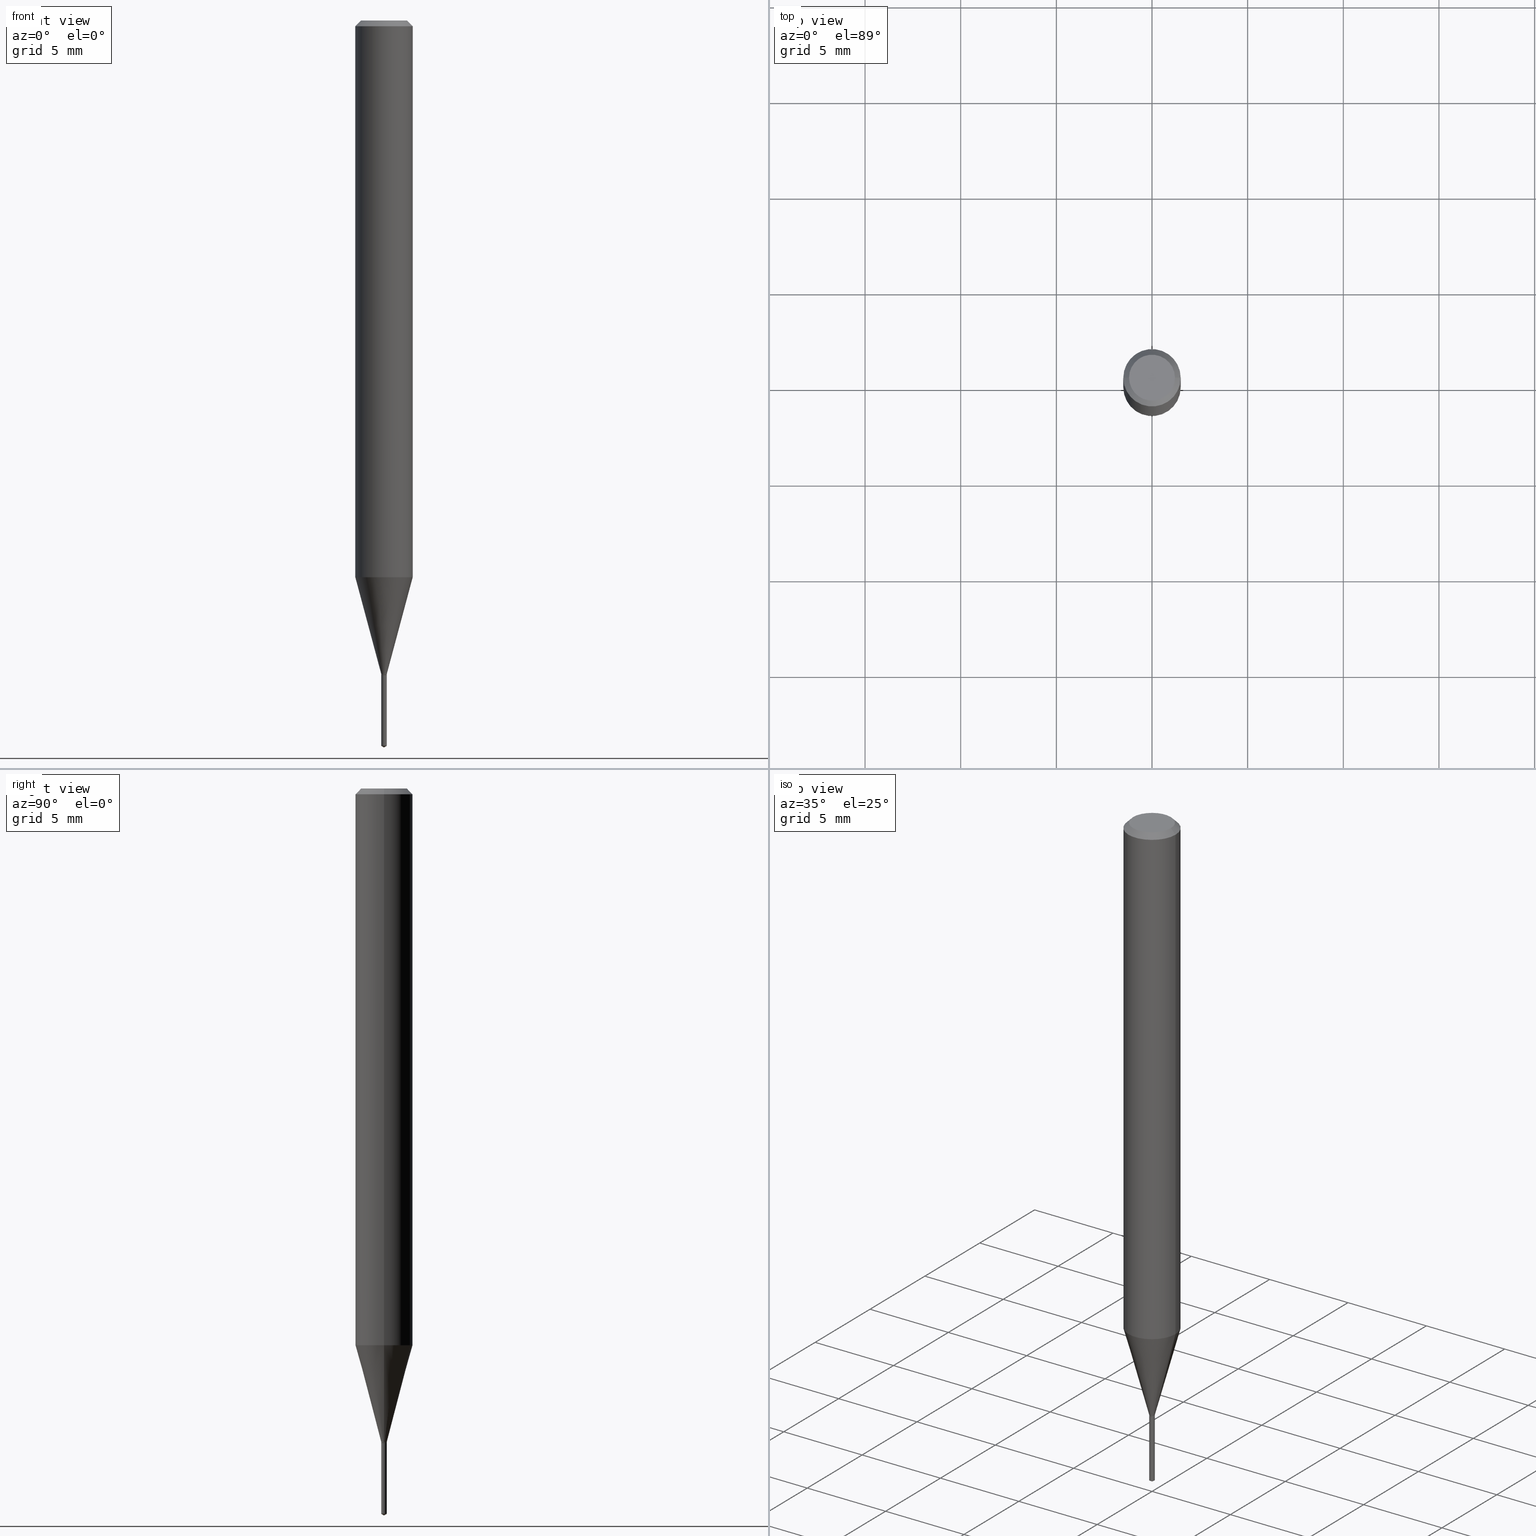
[diagram: canonical four-view strip — front | top / right | iso, engineering-drawing reading convention]
A machine part, canonical four-view strip (front | top / right | iso — engineering-drawing reading convention). The complete STEP part file that produces these views, byte-faithful:
ISO-10303-21;
HEADER;
FILE_DESCRIPTION (( 'STEP AP203' ),
    '1' );
FILE_NAME ('07404.STEP',
    '2024-04-23T21:06:12',
    ( '' ),
    ( '' ),
    'SwSTEP 2.0',
    'SolidWorks 2023',
    '' );
FILE_SCHEMA (( 'CONFIG_CONTROL_DESIGN' ));
ENDSEC;

DATA;
#1 = LINE ( 'NONE', #490, #30 ) ;
#2 = VECTOR ( 'NONE', #186, 39.37007874015748143 ) ;
#3 = FACE_OUTER_BOUND ( 'NONE', #461, .T. ) ;
#4 = CC_DESIGN_SECURITY_CLASSIFICATION ( #213, ( #173 ) ) ;
#5 = DIRECTION ( 'NONE',  ( -2.445468806185136597E-29, 3.491481338843145583E-15, 1.000000000000000000 ) ) ;
#6 = CC_DESIGN_PERSON_AND_ORGANIZATION_ASSIGNMENT ( #63, #412, ( #213 ) ) ;
#7 = CARTESIAN_POINT ( 'NONE',  ( 3.288666450557771176E-29, -4.695344104476262170E-15, -1.344799999999999773 ) ) ;
#8 = ORIENTED_EDGE ( 'NONE', *, *, #477, .T. ) ;
#9 =( NAMED_UNIT ( * ) PLANE_ANGLE_UNIT ( ) SI_UNIT ( $, .RADIAN. ) );
#10 = PERSON_AND_ORGANIZATION ( #181, #46 ) ;
#11 = UNCERTAINTY_MEASURE_WITH_UNIT (LENGTH_MEASURE( 1.000000000000000082E-05 ), #289, 'distance_accuracy_value', 'NONE');
#12 = AXIS2_PLACEMENT_3D ( 'NONE', #454, #270, #423 ) ;
#13 = EDGE_LOOP ( 'NONE', ( #317, #434, #108, #285 ) ) ;
#14 = EDGE_CURVE ( 'NONE', #135, #489, #288, .T. ) ;
#15 = AXIS2_PLACEMENT_3D ( 'NONE', #349, #269, #422 ) ;
#16 = ORIENTED_EDGE ( 'NONE', *, *, #341, .F. ) ;
#17 = CARTESIAN_POINT ( 'NONE',  ( -0.05905000000000013710, -3.580597539234551987E-15, -1.145695089416200130 ) ) ;
#18 = CYLINDRICAL_SURFACE ( 'NONE', #91, 0.005700000000000002807 ) ;
#19 = FACE_OUTER_BOUND ( 'NONE', #400, .T. ) ;
#20 = DIRECTION ( 'NONE',  ( -6.982962677686265922E-15, -1.000000000000000000, 0.000000000000000000 ) ) ;
#21 = ORIENTED_EDGE ( 'NONE', *, *, #468, .T. ) ;
#22 = VECTOR ( 'NONE', #277, 39.37007874015748143 ) ;
#23 = AXIS2_PLACEMENT_3D ( 'NONE', #127, #406, #286 ) ;
#24 = CARTESIAN_POINT ( 'NONE',  ( 0.04724000000000000421, -3.852183633974369345E-16, -3.380025165621689721E-19 ) ) ;
#25 = ORIENTED_EDGE ( 'NONE', *, *, #460, .T. ) ;
#26 = DATE_TIME_ROLE ( 'classification_date' ) ;
#27 = DIRECTION ( 'NONE',  ( 1.000000000000000000, -6.982962677686264344E-15, 0.000000000000000000 ) ) ;
#28 = PERSON_AND_ORGANIZATION ( #181, #46 ) ;
#29 = ADVANCED_FACE ( 'NONE', ( #19 ), #169, .F. ) ;
#30 = VECTOR ( 'NONE', #458, 39.37007874015747433 ) ;
#31 = LOCAL_TIME ( 17, 6, 12.00000000000000000, #120 ) ;
#32 = PERSON_AND_ORGANIZATION_ROLE ( 'creator' ) ;
#33 = DIRECTION ( 'NONE',  ( 1.000000000000000000, -6.982962677686266711E-15, 4.876185090822587894E-29 ) ) ;
#34 = ADVANCED_FACE ( 'NONE', ( #327 ), #64, .T. ) ;
#35 = DIRECTION ( 'NONE',  ( 1.000000000000000000, -6.982962677686266711E-15, 4.876185090822587894E-29 ) ) ;
#36 = AXIS2_PLACEMENT_3D ( 'NONE', #425, #97, #427 ) ;
#37 = AXIS2_PLACEMENT_3D ( 'NONE', #419, #385, #324 ) ;
#38 = CARTESIAN_POINT ( 'NONE',  ( 8.265746106709734507E-48, -1.180129479067563789E-33, -3.380025165646692144E-19 ) ) ;
#39 = PLANE ( 'NONE',  #190 ) ;
#40 = CARTESIAN_POINT ( 'NONE',  ( 4.132873053354867254E-48, -5.900647395337818946E-34, -1.690012582823346072E-19 ) ) ;
#41 = ORIENTED_EDGE ( 'NONE', *, *, #449, .F. ) ;
#42 = ADVANCED_FACE ( 'NONE', ( #273 ), #212, .T. ) ;
#43 = DIRECTION ( 'NONE',  ( 1.000000000000000000, -6.982962677686315620E-15, 0.000000000000000000 ) ) ;
#44 = AXIS2_PLACEMENT_3D ( 'NONE', #114, #206, #20 ) ;
#45 = CYLINDRICAL_SURFACE ( 'NONE', #302, 0.05905000000000006771 ) ;
#46 = ORGANIZATION ( 'UNSPECIFIED', 'UNSPECIFIED', '' ) ;
#47 = ORIENTED_EDGE ( 'NONE', *, *, #241, .T. ) ;
#48 = CARTESIAN_POINT ( 'NONE',  ( 3.292823747528286589E-29, -4.701279622752295282E-15, -1.346500000000000030 ) ) ;
#49 = ORIENTED_EDGE ( 'NONE', *, *, #149, .F. ) ;
#50 = AXIS2_PLACEMENT_3D ( 'NONE', #287, #210, #457 ) ;
#51 = AXIS2_PLACEMENT_3D ( 'NONE', #299, #444, #413 ) ;
#52 = ORIENTED_EDGE ( 'NONE', *, *, #77, .F. ) ;
#53 = DIRECTION ( 'NONE',  ( -2.445468806185136597E-29, 3.491481338843145583E-15, 1.000000000000000000 ) ) ;
#54 = LINE ( 'NONE', #369, #485 ) ;
#55 = VERTEX_POINT ( 'NONE', #118 ) ;
#56 = LENGTH_MEASURE_WITH_UNIT ( LENGTH_MEASURE( 0.02539999999999999897 ), #93 );
#57 = DIRECTION ( 'NONE',  ( -2.426064381555616541E-29, 3.519269579343880096E-15, 1.000000000000000000 ) ) ;
#58 = ORIENTED_EDGE ( 'NONE', *, *, #222, .T. ) ;
#59 = EDGE_CURVE ( 'NONE', #226, #122, #54, .T. ) ;
#60 = CYLINDRICAL_SURFACE ( 'NONE', #12, 0.005700000000000000205 ) ;
#61 = ORIENTED_EDGE ( 'NONE', *, *, #320, .T. ) ;
#62 = AXIS2_PLACEMENT_3D ( 'NONE', #101, #216, #27 ) ;
#63 = PERSON_AND_ORGANIZATION ( #181, #46 ) ;
#64 = CYLINDRICAL_SURFACE ( 'NONE', #110, 0.005700000000000000205 ) ;
#65 = CARTESIAN_POINT ( 'NONE',  ( 3.291601013125194348E-29, -4.699533882082873778E-15, -1.346000000000000085 ) ) ;
#66 = ADVANCED_FACE ( 'NONE', ( #168 ), #104, .T. ) ;
#67 = COORDINATED_UNIVERSAL_TIME_OFFSET ( 5, 0, .BEHIND. ) ;
#68 = ADVANCED_FACE ( 'NONE', ( #3 ), #18, .T. ) ;
#69 = DIRECTION ( 'NONE',  ( 1.000000000000000000, -6.982962677686315620E-15, 0.000000000000000000 ) ) ;
#70 = CARTESIAN_POINT ( 'NONE',  ( 8.265746106709734507E-48, -1.180129479067563789E-33, -3.380025165646692144E-19 ) ) ;
#71 = DIRECTION ( 'NONE',  ( -2.445468806185136877E-29, 3.491481338843145188E-15, 1.000000000000000000 ) ) ;
#72 = AXIS2_PLACEMENT_3D ( 'NONE', #187, #116, #80 ) ;
#73 = AXIS2_PLACEMENT_3D ( 'NONE', #48, #166, #86 ) ;
#74 = ORIENTED_EDGE ( 'NONE', *, *, #381, .T. ) ;
#75 = DIRECTION ( 'NONE',  ( 1.000000000000000000, -6.982962677686266711E-15, 4.876176775795936353E-29 ) ) ;
#76 = DIRECTION ( 'NONE',  ( -2.445468806185136597E-29, 3.491481338843145583E-15, 1.000000000000000000 ) ) ;
#77 = EDGE_CURVE ( 'NONE', #214, #291, #350, .T. ) ;
#78 = EDGE_LOOP ( 'NONE', ( #472, #307 ) ) ;
#79 = CARTESIAN_POINT ( 'NONE',  ( 0.05904999999999999832, -4.463468013801466955E-16, -0.01181000000000006871 ) ) ;
#80 = DIRECTION ( 'NONE',  ( 1.000000000000000000, -6.982962677686220957E-15, 0.000000000000000000 ) ) ;
#81 = VERTEX_POINT ( 'NONE', #158 ) ;
#82 = DIRECTION ( 'NONE',  ( -2.445468806185136597E-29, 3.491481338843145583E-15, 1.000000000000000000 ) ) ;
#83 = AXIS2_PLACEMENT_3D ( 'NONE', #132, #174, #208 ) ;
#84 = FACE_OUTER_BOUND ( 'NONE', #399, .T. ) ;
#85 = CIRCLE ( 'NONE', #234, 0.05904999999999999832 ) ;
#86 = DIRECTION ( 'NONE',  ( 1.000000000000000000, -6.982962677686220957E-15, 0.000000000000000000 ) ) ;
#87 = ORIENTED_EDGE ( 'NONE', *, *, #386, .F. ) ;
#88 = CALENDAR_DATE ( 2024, 23, 4 ) ;
#89 = ORIENTED_EDGE ( 'NONE', *, *, #96, .F. ) ;
#90 = APPLICATION_PROTOCOL_DEFINITION ( 'international standard', 'config_control_design', 1994, #220 ) ;
#91 = AXIS2_PLACEMENT_3D ( 'NONE', #235, #403, #247 ) ;
#92 = EDGE_LOOP ( 'NONE', ( #242, #124, #410, #404 ) ) ;
#93 =( LENGTH_UNIT ( ) NAMED_UNIT ( * ) SI_UNIT ( $, .METRE. ) );
#94 = DIRECTION ( 'NONE',  ( 1.000000000000000000, -6.982962677686315620E-15, 0.000000000000000000 ) ) ;
#95 = ORIENTED_EDGE ( 'NONE', *, *, #320, .F. ) ;
#96 = EDGE_CURVE ( 'NONE', #441, #291, #459, .T. ) ;
#97 = DIRECTION ( 'NONE',  ( -2.445468806185136597E-29, 3.491481338843145583E-15, 1.000000000000000000 ) ) ;
#98 = EDGE_LOOP ( 'NONE', ( #58, #248 ) ) ;
#99 = AXIS2_PLACEMENT_3D ( 'NONE', #219, #82, #43 ) ;
#100 = SECURITY_CLASSIFICATION_LEVEL ( 'unclassified' ) ;
#101 = CARTESIAN_POINT ( 'NONE',  ( 2.801761602566808784E-29, -4.000173024700892268E-15, -1.145695089416200130 ) ) ;
#102 = ADVANCED_FACE ( 'NONE', ( #361 ), #204, .F. ) ;
#103 = APPROVAL_STATUS ( 'not_yet_approved' ) ;
#104 = CONICAL_SURFACE ( 'NONE', #172, 0.005700000000000000205, 0.2617993877991500740 ) ;
#105 = AXIS2_PLACEMENT_3D ( 'NONE', #225, #308, #450 ) ;
#106 = CARTESIAN_POINT ( 'NONE',  ( 2.888098660104663328E-31, -4.123439461173779030E-17, -0.01181000000000006871 ) ) ;
#107 = DIRECTION ( 'NONE',  ( -5.985567269335942857E-15, -0.8571673007021103352, 0.5150380749100572642 ) ) ;
#108 = ORIENTED_EDGE ( 'NONE', *, *, #175, .F. ) ;
#109 = CARTESIAN_POINT ( 'NONE',  ( 3.292823747528286589E-29, -4.701279622752295282E-15, -1.346500000000000030 ) ) ;
#110 = AXIS2_PLACEMENT_3D ( 'NONE', #244, #141, #433 ) ;
#111 = LOCAL_TIME ( 17, 6, 12.00000000000000000, #162 ) ;
#112 = EDGE_CURVE ( 'NONE', #81, #251, #137, .T. ) ;
#113 = APPROVAL_PERSON_ORGANIZATION ( #395, #218, #355 ) ;
#114 = CARTESIAN_POINT ( 'NONE',  ( 3.292823747528286589E-29, -4.701279622752295282E-15, -1.346500000000000030 ) ) ;
#115 = LINE ( 'NONE', #488, #217 ) ;
#116 = DIRECTION ( 'NONE',  ( -2.445468806185136597E-29, 3.491481338843145583E-15, 1.000000000000000000 ) ) ;
#117 = CARTESIAN_POINT ( 'NONE',  ( 0.05905000000000013710, -4.412516970818267978E-15, -1.145695089416200130 ) ) ;
#118 = CARTESIAN_POINT ( 'NONE',  ( 0.05904999999999999832, -4.535783407291118600E-16, -0.01181000000000006871 ) ) ;
#119 = APPROVAL ( #367, 'UNSPECIFIED' ) ;
#120 = COORDINATED_UNIVERSAL_TIME_OFFSET ( 5, 0, .BEHIND. ) ;
#121 = CIRCLE ( 'NONE', #99, 0.005700000000000000205 ) ;
#122 = VERTEX_POINT ( 'NONE', #407 ) ;
#123 = DATE_AND_TIME ( #321, #111 ) ;
#124 = ORIENTED_EDGE ( 'NONE', *, *, #96, .T. ) ;
#125 = CARTESIAN_POINT ( 'NONE',  ( 0.005700000000000000205, -3.980288726281171734E-17, 2.779420762203683826E-31 ) ) ;
#126 = VERTEX_POINT ( 'NONE', #316 ) ;
#127 = CARTESIAN_POINT ( 'NONE',  ( 3.647453937696224246E-29, -5.215709185983714136E-15, -1.492675094471542785 ) ) ;
#128 = DIRECTION ( 'NONE',  ( -6.982962677686265922E-15, -1.000000000000000000, 0.000000000000000000 ) ) ;
#129 = ADVANCED_FACE ( 'NONE', ( #192 ), #322, .T. ) ;
#130 = VECTOR ( 'NONE', #140, 39.37007874015748143 ) ;
#131 = LOCAL_TIME ( 17, 6, 12.00000000000000000, #67 ) ;
#132 = CARTESIAN_POINT ( 'NONE',  ( 3.292823747528286589E-29, -4.701279622752295282E-15, -1.346500000000000030 ) ) ;
#133 = CARTESIAN_POINT ( 'NONE',  ( 3.292823747528286589E-29, -4.701279622752295282E-15, -1.346500000000000030 ) ) ;
#134 = CARTESIAN_POINT ( 'NONE',  ( -3.980288726277527567E-17, -0.005700000000005219988, -1.492675094471542785 ) ) ;
#135 = VERTEX_POINT ( 'NONE', #134 ) ;
#136 = CC_DESIGN_PERSON_AND_ORGANIZATION_ASSIGNMENT ( #340, #479, ( #173 ) ) ;
#137 = CIRCLE ( 'NONE', #36, 0.005700000000000000205 ) ;
#138 = CALENDAR_DATE ( 2024, 23, 4 ) ;
#139 = CONICAL_SURFACE ( 'NONE', #331, 0.05904999999999999832, 0.7853981633974452814 ) ;
#140 = DIRECTION ( 'NONE',  ( -2.445468806185136877E-29, 3.491481338843145188E-15, 1.000000000000000000 ) ) ;
#141 = DIRECTION ( 'NONE',  ( -2.445468806185136597E-29, 3.491481338843145583E-15, 1.000000000000000000 ) ) ;
#142 = APPROVAL_ROLE ( '' ) ;
#143 = ADVANCED_FACE ( 'NONE', ( #84 ), #409, .T. ) ;
#144 = AXIS2_PLACEMENT_3D ( 'NONE', #40, #171, #330 ) ;
#145 = VECTOR ( 'NONE', #147, 39.37007874015748143 ) ;
#146 = CARTESIAN_POINT ( 'NONE',  ( 0.000000000000000000, 0.000000000000000000, 0.000000000000000000 ) ) ;
#147 = DIRECTION ( 'NONE',  ( 0.7071067811865453523, -7.319954787623248157E-15, -0.7071067811865496822 ) ) ;
#148 = ORIENTED_EDGE ( 'NONE', *, *, #482, .F. ) ;
#149 = EDGE_CURVE ( 'NONE', #126, #489, #199, .T. ) ;
#150 = DIRECTION ( 'NONE',  ( 2.426064381555616261E-29, -3.519269579343880096E-15, -1.000000000000000000 ) ) ;
#151 = CARTESIAN_POINT ( 'NONE',  ( -0.05904999999999999832, 3.711095515056362547E-16, -0.01181000000000006871 ) ) ;
#152 = EDGE_LOOP ( 'NONE', ( #89, #159, #245, #87 ) ) ;
#153 = CARTESIAN_POINT ( 'NONE',  ( -0.05904999999999999832, -1.601128224189974322E-15, -0.01181000000000006871 ) ) ;
#154 = AXIS2_PLACEMENT_3D ( 'NONE', #337, #379, #442 ) ;
#155 = CARTESIAN_POINT ( 'NONE',  ( 2.801761602566808784E-29, -4.000173024700892268E-15, -1.145695089416200130 ) ) ;
#156 = LINE ( 'NONE', #183, #2 ) ;
#157 = CC_DESIGN_PERSON_AND_ORGANIZATION_ASSIGNMENT ( #10, #431, ( #332 ) ) ;
#158 = CARTESIAN_POINT ( 'NONE',  ( -0.005700000000000000205, -4.656938057341241991E-15, -1.346000000000000085 ) ) ;
#159 = ORIENTED_EDGE ( 'NONE', *, *, #202, .T. ) ;
#160 = DIRECTION ( 'NONE',  ( 0.000000000000000000, 0.000000000000000000, 1.000000000000000000 ) ) ;
#161 = ORIENTED_EDGE ( 'NONE', *, *, #381, .F. ) ;
#162 = COORDINATED_UNIVERSAL_TIME_OFFSET ( 5, 0, .BEHIND. ) ;
#163 = VECTOR ( 'NONE', #388, 39.37007874015748143 ) ;
#164 = ORIENTED_EDGE ( 'NONE', *, *, #420, .T. ) ;
#165 = EDGE_LOOP ( 'NONE', ( #223, #356, #16, #333 ) ) ;
#166 = DIRECTION ( 'NONE',  ( -2.445468806185136597E-29, 3.491481338843145583E-15, 1.000000000000000000 ) ) ;
#167 = ADVANCED_FACE ( 'NONE', ( #250 ), #60, .T. ) ;
#168 = FACE_OUTER_BOUND ( 'NONE', #334, .T. ) ;
#169 = PLANE ( 'NONE',  #83 ) ;
#170 = PERSON_AND_ORGANIZATION ( #181, #46 ) ;
#171 = DIRECTION ( 'NONE',  ( 2.438088387897960049E-29, -3.491481338843145188E-15, -1.000000000000000000 ) ) ;
#172 = AXIS2_PLACEMENT_3D ( 'NONE', #7, #290, #94 ) ;
#173 = PRODUCT_DEFINITION_FORMATION_WITH_SPECIFIED_SOURCE ( 'ANY', '', #374, .NOT_KNOWN. ) ;
#174 = DIRECTION ( 'NONE',  ( -2.438088387897960049E-29, 3.491481338843145188E-15, 1.000000000000000000 ) ) ;
#175 = EDGE_CURVE ( 'NONE', #263, #441, #446, .T. ) ;
#176 = VERTEX_POINT ( 'NONE', #389 ) ;
#177 = CC_DESIGN_APPROVAL ( #445, ( #173 ) ) ;
#178 = SHAPE_DEFINITION_REPRESENTATION ( #207, #252 ) ;
#179 = DATE_AND_TIME ( #375, #131 ) ;
#180 = ADVANCED_FACE ( 'NONE', ( #314 ), #295, .T. ) ;
#181 = PERSON ( 'UNSPECIFIED', 'UNSPECIFIED', 'UNSPECIFIED', ('UNSPECIFIED'), ('UNSPECIFIED'), ('UNSPECIFIED') ) ;
#182 = DIRECTION ( 'NONE',  ( -2.445468806185136597E-29, 3.491481338843145583E-15, 1.000000000000000000 ) ) ;
#183 = CARTESIAN_POINT ( 'NONE',  ( 4.050093593835865316E-17, 0.005699999999995300839, -1.346500000000000030 ) ) ;
#184 = ADVANCED_FACE ( 'NONE', ( #231 ), #45, .T. ) ;
#185 = FACE_OUTER_BOUND ( 'NONE', #152, .T. ) ;
#186 = DIRECTION ( 'NONE',  ( -2.426064381555616261E-29, 3.519269579343880096E-15, 1.000000000000000000 ) ) ;
#187 = CARTESIAN_POINT ( 'NONE',  ( 3.292823747528286589E-29, -4.701279622752295282E-15, -1.346500000000000030 ) ) ;
#188 = VERTEX_POINT ( 'NONE', #24 ) ;
#189 = CARTESIAN_POINT ( 'NONE',  ( 0.005700000000000000205, -4.739336769345685637E-15, -1.346000000000000085 ) ) ;
#190 = AXIS2_PLACEMENT_3D ( 'NONE', #109, #150, #346 ) ;
#191 = VECTOR ( 'NONE', #380, 39.37007874015747433 ) ;
#192 = FACE_OUTER_BOUND ( 'NONE', #353, .T. ) ;
#193 = VERTEX_POINT ( 'NONE', #335 ) ;
#194 = CARTESIAN_POINT ( 'NONE',  ( 2.888098660104663328E-31, -4.123439461173779030E-17, -0.01181000000000006871 ) ) ;
#195 = EDGE_CURVE ( 'NONE', #251, #81, #368, .T. ) ;
#196 = ORIENTED_EDGE ( 'NONE', *, *, #416, .F. ) ;
#197 = CARTESIAN_POINT ( 'NONE',  ( -3.980288726277878856E-17, -0.005700000000004702173, -1.346500000000000030 ) ) ;
#198 = ORIENTED_EDGE ( 'NONE', *, *, #195, .F. ) ;
#199 = CIRCLE ( 'NONE', #44, 0.005700000000000000205 ) ;
#200 =( GEOMETRIC_REPRESENTATION_CONTEXT ( 3 ) GLOBAL_UNCERTAINTY_ASSIGNED_CONTEXT ( ( #11 ) ) GLOBAL_UNIT_ASSIGNED_CONTEXT ( ( #289, #9, #398 ) ) REPRESENTATION_CONTEXT ( 'NONE', 'WORKASPACE' ) );
#201 = ORIENTED_EDGE ( 'NONE', *, *, #482, .T. ) ;
#202 = EDGE_CURVE ( 'NONE', #441, #263, #377, .T. ) ;
#203 = DATE_AND_TIME ( #88, #31 ) ;
#204 = PLANE ( 'NONE',  #144 ) ;
#205 = CARTESIAN_POINT ( 'NONE',  ( -3.980288726277880705E-17, -0.005700000000004703908, -1.346500000000000030 ) ) ;
#206 = DIRECTION ( 'NONE',  ( -2.426064381555616541E-29, 3.519269579343880096E-15, 1.000000000000000000 ) ) ;
#207 = PRODUCT_DEFINITION_SHAPE ( 'NONE', 'NONE',  #332 ) ;
#208 = DIRECTION ( 'NONE',  ( 1.000000000000000000, -6.982962677686265922E-15, 4.876176775795935793E-29 ) ) ;
#209 = COORDINATED_UNIVERSAL_TIME_OFFSET ( 5, 0, .BEHIND. ) ;
#210 = DIRECTION ( 'NONE',  ( -2.426064381555616541E-29, 3.519269579343880096E-15, 1.000000000000000000 ) ) ;
#211 = CC_DESIGN_DATE_AND_TIME_ASSIGNMENT ( #123, #378, ( #332 ) ) ;
#212 = CONICAL_SURFACE ( 'NONE', #50, 65.52281426576843160, 1.029744258676654312 ) ;
#213 = SECURITY_CLASSIFICATION ( '', '', #100 ) ;
#214 = VERTEX_POINT ( 'NONE', #293 ) ;
#215 = DATE_AND_TIME ( #138, #486 ) ;
#216 = DIRECTION ( 'NONE',  ( -2.445468806185136597E-29, 3.491481338843145583E-15, 1.000000000000000000 ) ) ;
#217 = VECTOR ( 'NONE', #71, 39.37007874015748143 ) ;
#218 = APPROVAL ( #318, 'UNSPECIFIED' ) ;
#219 = CARTESIAN_POINT ( 'NONE',  ( 3.288666450557771176E-29, -4.695344104476262170E-15, -1.344799999999999773 ) ) ;
#220 = APPLICATION_CONTEXT ( 'configuration controlled 3d designs of mechanical parts and assemblies' ) ;
#221 = DIRECTION ( 'NONE',  ( -2.445468806185136597E-29, 3.491481338843145583E-15, 1.000000000000000000 ) ) ;
#222 = EDGE_CURVE ( 'NONE', #489, #126, #343, .T. ) ;
#223 = ORIENTED_EDGE ( 'NONE', *, *, #195, .T. ) ;
#224 = CIRCLE ( 'NONE', #358, 0.005199999999999999761 ) ;
#225 = CARTESIAN_POINT ( 'NONE',  ( 3.288666450557771176E-29, -4.695344104476262170E-15, -1.344799999999999773 ) ) ;
#226 = VERTEX_POINT ( 'NONE', #376 ) ;
#227 = CARTESIAN_POINT ( 'NONE',  ( 0.005700000000000000205, -4.735146991739074029E-15, -1.344799999999999773 ) ) ;
#228 = DIRECTION ( 'NONE',  ( 1.000000000000000000, -6.982962677686264344E-15, 0.000000000000000000 ) ) ;
#229 = ORIENTED_EDGE ( 'NONE', *, *, #249, .T. ) ;
#230 = CYLINDRICAL_SURFACE ( 'NONE', #310, 0.05905000000000006771 ) ;
#231 = FACE_OUTER_BOUND ( 'NONE', #92, .T. ) ;
#232 = ORIENTED_EDGE ( 'NONE', *, *, #112, .F. ) ;
#233 = EDGE_CURVE ( 'NONE', #263, #55, #417, .T. ) ;
#234 = AXIS2_PLACEMENT_3D ( 'NONE', #382, #182, #342 ) ;
#235 = CARTESIAN_POINT ( 'NONE',  ( 3.292823747528286589E-29, -4.701279622752295282E-15, -1.346500000000000030 ) ) ;
#236 = ORIENTED_EDGE ( 'NONE', *, *, #364, .T. ) ;
#237 = CARTESIAN_POINT ( 'NONE',  ( 0.005199999999999999761, -4.737591028676263345E-15, -1.346500000000000030 ) ) ;
#238 = ORIENTED_EDGE ( 'NONE', *, *, #14, .F. ) ;
#239 = APPLICATION_CONTEXT ( 'configuration controlled 3d designs of mechanical parts and assemblies' ) ;
#240 = DESIGN_CONTEXT ( 'detailed design', #239, 'design' ) ;
#241 = EDGE_CURVE ( 'NONE', #122, #135, #253, .T. ) ;
#242 = ORIENTED_EDGE ( 'NONE', *, *, #175, .T. ) ;
#243 = CLOSED_SHELL ( 'NONE', ( #180, #336, #184, #435, #34, #167, #66, #292, #405, #102, #29, #348 ) ) ;
#244 = CARTESIAN_POINT ( 'NONE',  ( 0.000000000000000000, 0.000000000000000000, 0.000000000000000000 ) ) ;
#245 = ORIENTED_EDGE ( 'NONE', *, *, #233, .T. ) ;
#246 = DIRECTION ( 'NONE',  ( 1.000000000000000000, -6.982962677686220957E-15, 0.000000000000000000 ) ) ;
#247 = DIRECTION ( 'NONE',  ( -6.982962677686265922E-15, -1.000000000000000000, 0.000000000000000000 ) ) ;
#248 = ORIENTED_EDGE ( 'NONE', *, *, #149, .T. ) ;
#249 = EDGE_CURVE ( 'NONE', #176, #325, #121, .T. ) ;
#250 = FACE_OUTER_BOUND ( 'NONE', #366, .T. ) ;
#251 = VERTEX_POINT ( 'NONE', #189 ) ;
#252 = ADVANCED_BREP_SHAPE_REPRESENTATION ( '07404', ( #465, #301, #304 ), #200 ) ;
#253 = CIRCLE ( 'NONE', #51, 0.005700000000000004542 ) ;
#254 = CONICAL_SURFACE ( 'NONE', #37, 0.005700000000000000205, 0.2617993877991500740 ) ;
#255 = CALENDAR_DATE ( 2024, 23, 4 ) ;
#256 = DIRECTION ( 'NONE',  ( -2.445468806185136597E-29, 3.491481338843145583E-15, 1.000000000000000000 ) ) ;
#257 = EDGE_CURVE ( 'NONE', #193, #81, #391, .T. ) ;
#258 = DIRECTION ( 'NONE',  ( 1.000000000000000000, -6.982962677686266711E-15, 4.876176775795936353E-29 ) ) ;
#259 = VECTOR ( 'NONE', #437, 39.37007874015748143 ) ;
#260 = DIRECTION ( 'NONE',  ( -2.445468806185136597E-29, 3.491481338843145583E-15, 1.000000000000000000 ) ) ;
#261 = ADVANCED_FACE ( 'NONE', ( #456 ), #39, .F. ) ;
#262 = DIRECTION ( 'NONE',  ( 2.445468806185136597E-29, -3.491481338843145583E-15, -1.000000000000000000 ) ) ;
#263 = VERTEX_POINT ( 'NONE', #117 ) ;
#264 = FACE_OUTER_BOUND ( 'NONE', #13, .T. ) ;
#265 = CIRCLE ( 'NONE', #453, 0.04724000000000000421 ) ;
#266 = ORIENTED_EDGE ( 'NONE', *, *, #14, .T. ) ;
#267 = AXIS2_PLACEMENT_3D ( 'NONE', #65, #260, #69 ) ;
#268 = CIRCLE ( 'NONE', #23, 0.005700000000000004542 ) ;
#269 = DIRECTION ( 'NONE',  ( -2.445468806185136597E-29, 3.491481338843145583E-15, 1.000000000000000000 ) ) ;
#270 = DIRECTION ( 'NONE',  ( -2.445468806185136597E-29, 3.491481338843145583E-15, 1.000000000000000000 ) ) ;
#271 = ORIENTED_EDGE ( 'NONE', *, *, #282, .F. ) ;
#272 = DIRECTION ( 'NONE',  ( -1.000000000000000000, 6.982962677686266711E-15, 0.000000000000000000 ) ) ;
#273 = FACE_OUTER_BOUND ( 'NONE', #408, .T. ) ;
#274 = CC_DESIGN_PERSON_AND_ORGANIZATION_ASSIGNMENT ( #28, #32, ( #173 ) ) ;
#275 = ORIENTED_EDGE ( 'NONE', *, *, #303, .F. ) ;
#276 = DIRECTION ( 'NONE',  ( 2.445468806185136597E-29, -3.491481338843145583E-15, -1.000000000000000000 ) ) ;
#277 = DIRECTION ( 'NONE',  ( -2.445468806185136877E-29, 3.491481338843145188E-15, 1.000000000000000000 ) ) ;
#278 = EDGE_LOOP ( 'NONE', ( #161, #196, #469, #323 ) ) ;
#279 = MECHANICAL_CONTEXT ( 'NONE', #220, 'mechanical' ) ;
#280 = ORIENTED_EDGE ( 'NONE', *, *, #112, .T. ) ;
#281 = LINE ( 'NONE', #237, #259 ) ;
#282 = EDGE_CURVE ( 'NONE', #188, #214, #265, .T. ) ;
#283 = ORIENTED_EDGE ( 'NONE', *, *, #477, .F. ) ;
#284 = DIRECTION ( 'NONE',  ( -2.445468806185136597E-29, 3.491481338843145583E-15, 1.000000000000000000 ) ) ;
#285 = ORIENTED_EDGE ( 'NONE', *, *, #364, .F. ) ;
#286 = DIRECTION ( 'NONE',  ( -6.982962677686265922E-15, -1.000000000000000000, 0.000000000000000000 ) ) ;
#287 = CARTESIAN_POINT ( 'NONE',  ( -9.185858275152708690E-28, 1.333261580947873260E-13, 37.87397874015748300 ) ) ;
#288 = LINE ( 'NONE', #205, #393 ) ;
#289 =( CONVERSION_BASED_UNIT ( 'INCH', #56 ) LENGTH_UNIT ( ) NAMED_UNIT ( #439 ) );
#290 = DIRECTION ( 'NONE',  ( -2.445468806185136597E-29, 3.491481338843145583E-15, 1.000000000000000000 ) ) ;
#291 = VERTEX_POINT ( 'NONE', #153 ) ;
#292 = ADVANCED_FACE ( 'NONE', ( #185 ), #230, .T. ) ;
#293 = CARTESIAN_POINT ( 'NONE',  ( -0.04724000000000000421, 3.504923541997677355E-16, -3.380025165670481712E-19 ) ) ;
#294 = APPROVAL_DATE_TIME ( #179, #445 ) ;
#295 = CONICAL_SURFACE ( 'NONE', #72, 0.005199999999999999761, 0.7853981633975496424 ) ;
#296 = CIRCLE ( 'NONE', #105, 0.005700000000000000205 ) ;
#297 = COORDINATED_UNIVERSAL_TIME_OFFSET ( 5, 0, .BEHIND. ) ;
#298 = EDGE_CURVE ( 'NONE', #176, #441, #1, .T. ) ;
#299 = CARTESIAN_POINT ( 'NONE',  ( 3.647453937696224246E-29, -5.215709185983714136E-15, -1.492675094471542785 ) ) ;
#300 = APPROVAL_ROLE ( '' ) ;
#301 = MANIFOLD_SOLID_BREP ( 'Body-Move/Copy2[2]', #243 ) ;
#302 = AXIS2_PLACEMENT_3D ( 'NONE', #480, #256, #258 ) ;
#303 = EDGE_CURVE ( 'NONE', #81, #176, #115, .T. ) ;
#304 = AXIS2_PLACEMENT_3D ( 'NONE', #363, #160, #357 ) ;
#305 = FACE_OUTER_BOUND ( 'NONE', #278, .T. ) ;
#306 = CARTESIAN_POINT ( 'NONE',  ( 3.629634921245357153E-29, -5.265179217656378894E-15, -1.496099999999999985 ) ) ;
#307 = ORIENTED_EDGE ( 'NONE', *, *, #282, .T. ) ;
#308 = DIRECTION ( 'NONE',  ( -2.445468806185136597E-29, 3.491481338843145583E-15, 1.000000000000000000 ) ) ;
#309 = CARTESIAN_POINT ( 'NONE',  ( -0.05905000000000006771, 4.195754854663396409E-16, -2.904631170795525045E-30 ) ) ;
#310 = AXIS2_PLACEMENT_3D ( 'NONE', #146, #5, #75 ) ;
#311 = CONICAL_SURFACE ( 'NONE', #15, 0.005199999999999999761, 0.7853981633975496424 ) ;
#312 = DIRECTION ( 'NONE',  ( -2.445468806185136597E-29, 3.491481338843145583E-15, 1.000000000000000000 ) ) ;
#313 = CC_DESIGN_PERSON_AND_ORGANIZATION_ASSIGNMENT ( #170, #474, ( #374 ) ) ;
#314 = FACE_OUTER_BOUND ( 'NONE', #371, .T. ) ;
#315 = CARTESIAN_POINT ( 'NONE',  ( 0.005700000000000000205, -4.735146991739074029E-15, -1.344799999999999773 ) ) ;
#316 = CARTESIAN_POINT ( 'NONE',  ( 4.050093593836224617E-17, 0.005699999999995298237, -1.346500000000000030 ) ) ;
#317 = ORIENTED_EDGE ( 'NONE', *, *, #341, .T. ) ;
#318 = APPROVAL_STATUS ( 'not_yet_approved' ) ;
#319 = ORIENTED_EDGE ( 'NONE', *, *, #487, .T. ) ;
#320 = EDGE_CURVE ( 'NONE', #122, #126, #156, .T. ) ;
#321 = CALENDAR_DATE ( 2024, 23, 4 ) ;
#322 = CONICAL_SURFACE ( 'NONE', #462, 65.52281426576843160, 1.029744258676654312 ) ;
#323 = ORIENTED_EDGE ( 'NONE', *, *, #386, .T. ) ;
#324 = DIRECTION ( 'NONE',  ( 1.000000000000000000, -6.982962677686315620E-15, 0.000000000000000000 ) ) ;
#325 = VERTEX_POINT ( 'NONE', #315 ) ;
#326 = DIRECTION ( 'NONE',  ( 1.000000000000000000, -6.982962677686266711E-15, 0.000000000000000000 ) ) ;
#327 = FACE_OUTER_BOUND ( 'NONE', #165, .T. ) ;
#328 = CARTESIAN_POINT ( 'NONE',  ( 3.292823747528286589E-29, -4.701279622752295282E-15, -1.346500000000000030 ) ) ;
#329 = ORIENTED_EDGE ( 'NONE', *, *, #449, .T. ) ;
#330 = DIRECTION ( 'NONE',  ( -1.000000000000000000, 6.982962677686265922E-15, -4.876176775795935793E-29 ) ) ;
#331 = AXIS2_PLACEMENT_3D ( 'NONE', #448, #276, #272 ) ;
#332 = PRODUCT_DEFINITION ( 'UNKNOWN', '', #173, #240 ) ;
#333 = ORIENTED_EDGE ( 'NONE', *, *, #460, .F. ) ;
#334 = EDGE_LOOP ( 'NONE', ( #438, #229, #236, #429 ) ) ;
#335 = CARTESIAN_POINT ( 'NONE',  ( -0.005199999999999999761, -4.661682173318658996E-15, -1.346500000000000030 ) ) ;
#336 = ADVANCED_FACE ( 'NONE', ( #484 ), #139, .T. ) ;
#337 = CARTESIAN_POINT ( 'NONE',  ( 3.292823747528286589E-29, -4.701279622752295282E-15, -1.346500000000000030 ) ) ;
#338 = CC_DESIGN_APPROVAL ( #218, ( #332 ) ) ;
#339 = CARTESIAN_POINT ( 'NONE',  ( 0.05905000000000006771, -4.123439461173745257E-16, 2.879382386107503723E-30 ) ) ;
#340 = PERSON_AND_ORGANIZATION ( #181, #46 ) ;
#341 = EDGE_CURVE ( 'NONE', #325, #176, #296, .T. ) ;
#342 = DIRECTION ( 'NONE',  ( 1.000000000000000000, -6.982962677686266711E-15, 0.000000000000000000 ) ) ;
#343 = CIRCLE ( 'NONE', #154, 0.005700000000000000205 ) ;
#344 = CIRCLE ( 'NONE', #73, 0.005199999999999999761 ) ;
#345 = LINE ( 'NONE', #306, #475 ) ;
#346 = DIRECTION ( 'NONE',  ( 6.982962677686265922E-15, 1.000000000000000000, -3.519269579343880096E-15 ) ) ;
#347 = ORIENTED_EDGE ( 'NONE', *, *, #241, .F. ) ;
#348 = ADVANCED_FACE ( 'NONE', ( #452 ), #311, .T. ) ;
#349 = CARTESIAN_POINT ( 'NONE',  ( 3.292823747528286589E-29, -4.701279622752295282E-15, -1.346500000000000030 ) ) ;
#350 = LINE ( 'NONE', #151, #473 ) ;
#351 = CONICAL_SURFACE ( 'NONE', #464, 0.05904999999999999832, 0.7853981633974452814 ) ;
#352 = CARTESIAN_POINT ( 'NONE',  ( -0.005199999999999999761, -4.664331400492770197E-15, -1.346500000000000030 ) ) ;
#353 = EDGE_LOOP ( 'NONE', ( #432, #421, #466 ) ) ;
#354 = LINE ( 'NONE', #125, #447 ) ;
#355 = APPROVAL_ROLE ( '' ) ;
#356 = ORIENTED_EDGE ( 'NONE', *, *, #303, .T. ) ;
#357 = DIRECTION ( 'NONE',  ( 1.000000000000000000, 0.000000000000000000, 0.000000000000000000 ) ) ;
#358 = AXIS2_PLACEMENT_3D ( 'NONE', #133, #284, #246 ) ;
#359 = ORIENTED_EDGE ( 'NONE', *, *, #222, .F. ) ;
#360 = APPROVAL_DATE_TIME ( #203, #218 ) ;
#361 = FACE_OUTER_BOUND ( 'NONE', #78, .T. ) ;
#362 = DIRECTION ( 'NONE',  ( -2.426064381555616261E-29, 3.519269579343880096E-15, 1.000000000000000000 ) ) ;
#363 = CARTESIAN_POINT ( 'NONE',  ( 0.000000000000000000, 0.000000000000000000, 0.000000000000000000 ) ) ;
#364 = EDGE_CURVE ( 'NONE', #325, #263, #426, .T. ) ;
#365 = DIRECTION ( 'NONE',  ( -0.7071067811865453523, 2.468850131082234184E-15, -0.7071067811865496822 ) ) ;
#366 = EDGE_LOOP ( 'NONE', ( #275, #280, #25, #436 ) ) ;
#367 = APPROVAL_STATUS ( 'not_yet_approved' ) ;
#368 = CIRCLE ( 'NONE', #267, 0.005700000000000000205 ) ;
#369 = CARTESIAN_POINT ( 'NONE',  ( 3.682349261222435351E-29, -5.190345485987900417E-15, -1.496099999999999985 ) ) ;
#370 = APPROVAL_PERSON_ORGANIZATION ( #443, #445, #142 ) ;
#371 = EDGE_LOOP ( 'NONE', ( #329, #463, #198, #148 ) ) ;
#372 = PRODUCT_RELATED_PRODUCT_CATEGORY ( 'detail', '', ( #374 ) ) ;
#373 = APPROVAL_DATE_TIME ( #215, #119 ) ;
#374 = PRODUCT ( '07404', '07404', '', ( #279 ) ) ;
#375 = CALENDAR_DATE ( 2024, 23, 4 ) ;
#376 = CARTESIAN_POINT ( 'NONE',  ( 3.629634921245357153E-29, -5.265179217656378894E-15, -1.496099999999999985 ) ) ;
#377 = CIRCLE ( 'NONE', #62, 0.05905000000000013710 ) ;
#378 = DATE_TIME_ROLE ( 'creation_date' ) ;
#379 = DIRECTION ( 'NONE',  ( -2.426064381555616541E-29, 3.519269579343880096E-15, 1.000000000000000000 ) ) ;
#380 = DIRECTION ( 'NONE',  ( 0.2588190451025213501, 1.565188264969621968E-15, 0.9659258262890682012 ) ) ;
#381 = EDGE_CURVE ( 'NONE', #188, #55, #424, .T. ) ;
#382 = CARTESIAN_POINT ( 'NONE',  ( 2.888098660104663328E-31, -4.123439461173779030E-17, -0.01181000000000006871 ) ) ;
#383 = AXIS2_PLACEMENT_3D ( 'NONE', #155, #76, #228 ) ;
#384 = APPROVAL_PERSON_ORGANIZATION ( #483, #119, #300 ) ;
#385 = DIRECTION ( 'NONE',  ( -2.445468806185136597E-29, 3.491481338843145583E-15, 1.000000000000000000 ) ) ;
#386 = EDGE_CURVE ( 'NONE', #291, #55, #85, .T. ) ;
#387 = ORIENTED_EDGE ( 'NONE', *, *, #257, .F. ) ;
#388 = DIRECTION ( 'NONE',  ( -0.7071067811866191821, 7.493145998870612907E-15, 0.7071067811864758523 ) ) ;
#389 = CARTESIAN_POINT ( 'NONE',  ( -0.005700000000000000205, -4.656938057341241991E-15, -1.344799999999999773 ) ) ;
#390 = ORIENTED_EDGE ( 'NONE', *, *, #59, .F. ) ;
#391 = LINE ( 'NONE', #352, #163 ) ;
#392 = DIRECTION ( 'NONE',  ( 6.090539988449779224E-15, 0.8571673007021139989, 0.5150380749100512690 ) ) ;
#393 = VECTOR ( 'NONE', #362, 39.37007874015748143 ) ;
#394 = AXIS2_PLACEMENT_3D ( 'NONE', #194, #53, #326 ) ;
#395 = PERSON_AND_ORGANIZATION ( #181, #46 ) ;
#396 = CC_DESIGN_DATE_AND_TIME_ASSIGNMENT ( #411, #26, ( #213 ) ) ;
#397 = EDGE_LOOP ( 'NONE', ( #387, #8, #201, #232 ) ) ;
#398 =( NAMED_UNIT ( * ) SI_UNIT ( $, .STERADIAN. ) SOLID_ANGLE_UNIT ( ) );
#399 = EDGE_LOOP ( 'NONE', ( #319, #61, #359, #238 ) ) ;
#400 = EDGE_LOOP ( 'NONE', ( #41, #283 ) ) ;
#401 = APPLICATION_PROTOCOL_DEFINITION ( 'international standard', 'config_control_design', 1994, #239 ) ;
#402 = LOCAL_TIME ( 17, 6, 12.00000000000000000, #209 ) ;
#403 = DIRECTION ( 'NONE',  ( -2.426064381555616541E-29, 3.519269579343880096E-15, 1.000000000000000000 ) ) ;
#404 = ORIENTED_EDGE ( 'NONE', *, *, #233, .F. ) ;
#405 = ADVANCED_FACE ( 'NONE', ( #305 ), #351, .T. ) ;
#406 = DIRECTION ( 'NONE',  ( -2.426064381555616541E-29, 3.519269579343880096E-15, 1.000000000000000000 ) ) ;
#407 = CARTESIAN_POINT ( 'NONE',  ( 4.050093593836220920E-17, 0.005699999999994788229, -1.492675094471542785 ) ) ;
#408 = EDGE_LOOP ( 'NONE', ( #390, #164, #347 ) ) ;
#409 = CYLINDRICAL_SURFACE ( 'NONE', #428, 0.005700000000000002807 ) ;
#410 = ORIENTED_EDGE ( 'NONE', *, *, #468, .F. ) ;
#411 = DATE_AND_TIME ( #255, #402 ) ;
#412 = PERSON_AND_ORGANIZATION_ROLE ( 'classification_officer' ) ;
#413 = DIRECTION ( 'NONE',  ( -6.982962677686265922E-15, -1.000000000000000000, 0.000000000000000000 ) ) ;
#414 = CLOSED_SHELL ( 'NONE', ( #143, #129, #42, #68, #261 ) ) ;
#415 = CIRCLE ( 'NONE', #430, 0.04724000000000000421 ) ;
#416 = EDGE_CURVE ( 'NONE', #214, #188, #415, .T. ) ;
#417 = LINE ( 'NONE', #339, #130 ) ;
#418 = DIRECTION ( 'NONE',  ( -1.000000000000000000, 6.982962677686266711E-15, 0.000000000000000000 ) ) ;
#419 = CARTESIAN_POINT ( 'NONE',  ( 3.288666450557771176E-29, -4.695344104476262170E-15, -1.344799999999999773 ) ) ;
#420 = EDGE_CURVE ( 'NONE', #226, #135, #345, .T. ) ;
#421 = ORIENTED_EDGE ( 'NONE', *, *, #59, .T. ) ;
#422 = DIRECTION ( 'NONE',  ( 1.000000000000000000, -6.982962677686220957E-15, 0.000000000000000000 ) ) ;
#423 = DIRECTION ( 'NONE',  ( 1.000000000000000000, -6.982962677686265922E-15, 4.876176775795936353E-29 ) ) ;
#424 = LINE ( 'NONE', #79, #145 ) ;
#425 = CARTESIAN_POINT ( 'NONE',  ( 3.291601013125194348E-29, -4.699533882082873778E-15, -1.346000000000000085 ) ) ;
#426 = LINE ( 'NONE', #227, #191 ) ;
#427 = DIRECTION ( 'NONE',  ( 1.000000000000000000, -6.982962677686315620E-15, 0.000000000000000000 ) ) ;
#428 = AXIS2_PLACEMENT_3D ( 'NONE', #328, #471, #128 ) ;
#429 = ORIENTED_EDGE ( 'NONE', *, *, #202, .F. ) ;
#430 = AXIS2_PLACEMENT_3D ( 'NONE', #70, #221, #35 ) ;
#431 = PERSON_AND_ORGANIZATION_ROLE ( 'creator' ) ;
#432 = ORIENTED_EDGE ( 'NONE', *, *, #420, .F. ) ;
#433 = DIRECTION ( 'NONE',  ( 1.000000000000000000, -6.982962677686265922E-15, 4.876176775795936353E-29 ) ) ;
#434 = ORIENTED_EDGE ( 'NONE', *, *, #298, .T. ) ;
#435 = ADVANCED_FACE ( 'NONE', ( #264 ), #254, .T. ) ;
#436 = ORIENTED_EDGE ( 'NONE', *, *, #249, .F. ) ;
#437 = DIRECTION ( 'NONE',  ( 0.7071067811866191821, -2.468850131083007662E-15, 0.7071067811864758523 ) ) ;
#438 = ORIENTED_EDGE ( 'NONE', *, *, #298, .F. ) ;
#439 = DIMENSIONAL_EXPONENTS ( 1.000000000000000000, 0.000000000000000000, 0.000000000000000000, 0.000000000000000000, 0.000000000000000000, 0.000000000000000000, 0.000000000000000000 ) ;
#440 = DIRECTION ( 'NONE',  ( -6.982962677686264344E-15, -1.000000000000000000, 3.602282186708578288E-15 ) ) ;
#441 = VERTEX_POINT ( 'NONE', #17 ) ;
#442 = DIRECTION ( 'NONE',  ( -6.982962677686265922E-15, -1.000000000000000000, 0.000000000000000000 ) ) ;
#443 = PERSON_AND_ORGANIZATION ( #181, #46 ) ;
#444 = DIRECTION ( 'NONE',  ( -2.426064381555616541E-29, 3.519269579343880096E-15, 1.000000000000000000 ) ) ;
#445 = APPROVAL ( #103, 'UNSPECIFIED' ) ;
#446 = CIRCLE ( 'NONE', #383, 0.05905000000000013710 ) ;
#447 = VECTOR ( 'NONE', #470, 39.37007874015748143 ) ;
#448 = CARTESIAN_POINT ( 'NONE',  ( 2.888098660104663328E-31, -4.123439461173779030E-17, -0.01181000000000006871 ) ) ;
#449 = EDGE_CURVE ( 'NONE', #451, #193, #344, .T. ) ;
#450 = DIRECTION ( 'NONE',  ( 1.000000000000000000, -6.982962677686315620E-15, 0.000000000000000000 ) ) ;
#451 = VERTEX_POINT ( 'NONE', #467 ) ;
#452 = FACE_OUTER_BOUND ( 'NONE', #397, .T. ) ;
#453 = AXIS2_PLACEMENT_3D ( 'NONE', #38, #312, #33 ) ;
#454 = CARTESIAN_POINT ( 'NONE',  ( 0.000000000000000000, 0.000000000000000000, 0.000000000000000000 ) ) ;
#455 = CC_DESIGN_APPROVAL ( #119, ( #213 ) ) ;
#456 = FACE_OUTER_BOUND ( 'NONE', #98, .T. ) ;
#457 = DIRECTION ( 'NONE',  ( -6.982962677686264344E-15, -1.000000000000000000, 3.602282186708578288E-15 ) ) ;
#458 = DIRECTION ( 'NONE',  ( -0.2588190451025213501, 5.211531920934551042E-15, 0.9659258262890682012 ) ) ;
#459 = LINE ( 'NONE', #309, #22 ) ;
#460 = EDGE_CURVE ( 'NONE', #251, #325, #354, .T. ) ;
#461 = EDGE_LOOP ( 'NONE', ( #95, #47, #266, #49 ) ) ;
#462 = AXIS2_PLACEMENT_3D ( 'NONE', #476, #57, #440 ) ;
#463 = ORIENTED_EDGE ( 'NONE', *, *, #257, .T. ) ;
#464 = AXIS2_PLACEMENT_3D ( 'NONE', #106, #262, #418 ) ;
#465 = MANIFOLD_SOLID_BREP ( 'Body-Move/Copy2[1]', #414 ) ;
#466 = ORIENTED_EDGE ( 'NONE', *, *, #487, .F. ) ;
#467 = CARTESIAN_POINT ( 'NONE',  ( 0.005199999999999999761, -4.737591028676263345E-15, -1.346500000000000030 ) ) ;
#468 = EDGE_CURVE ( 'NONE', #55, #291, #481, .T. ) ;
#469 = ORIENTED_EDGE ( 'NONE', *, *, #77, .T. ) ;
#470 = DIRECTION ( 'NONE',  ( -2.445468806185136877E-29, 3.491481338843145188E-15, 1.000000000000000000 ) ) ;
#471 = DIRECTION ( 'NONE',  ( -2.426064381555616541E-29, 3.519269579343880096E-15, 1.000000000000000000 ) ) ;
#472 = ORIENTED_EDGE ( 'NONE', *, *, #416, .T. ) ;
#473 = VECTOR ( 'NONE', #365, 39.37007874015748143 ) ;
#474 = PERSON_AND_ORGANIZATION_ROLE ( 'design_owner' ) ;
#475 = VECTOR ( 'NONE', #107, 39.37007874015748143 ) ;
#476 = CARTESIAN_POINT ( 'NONE',  ( -9.185858275152708690E-28, 1.333261580947873260E-13, 37.87397874015748300 ) ) ;
#477 = EDGE_CURVE ( 'NONE', #193, #451, #224, .T. ) ;
#478 = EDGE_LOOP ( 'NONE', ( #271, #74, #21, #52 ) ) ;
#479 = PERSON_AND_ORGANIZATION_ROLE ( 'design_supplier' ) ;
#480 = CARTESIAN_POINT ( 'NONE',  ( 0.000000000000000000, 0.000000000000000000, 0.000000000000000000 ) ) ;
#481 = CIRCLE ( 'NONE', #394, 0.05904999999999999832 ) ;
#482 = EDGE_CURVE ( 'NONE', #451, #251, #281, .T. ) ;
#483 = PERSON_AND_ORGANIZATION ( #181, #46 ) ;
#484 = FACE_OUTER_BOUND ( 'NONE', #478, .T. ) ;
#485 = VECTOR ( 'NONE', #392, 39.37007874015748143 ) ;
#486 = LOCAL_TIME ( 17, 6, 12.00000000000000000, #297 ) ;
#487 = EDGE_CURVE ( 'NONE', #135, #122, #268, .T. ) ;
#488 = CARTESIAN_POINT ( 'NONE',  ( -0.005700000000000000205, 4.050093593832571205E-17, -2.803793001445296523E-31 ) ) ;
#489 = VERTEX_POINT ( 'NONE', #197 ) ;
#490 = CARTESIAN_POINT ( 'NONE',  ( -0.005700000000000000205, -4.654843168537936187E-15, -1.344799999999999773 ) ) ;
ENDSEC;
END-ISO-10303-21;
